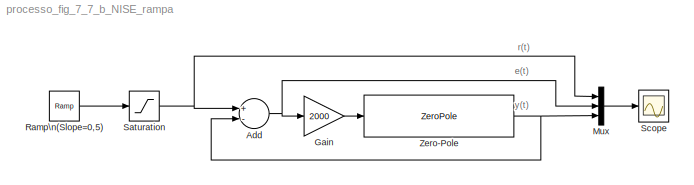
MODEL processo_fig_7_7_b_NISE_rampa
KIND model
BLOCK [Sum] Add
  InputSameDT = off
  Inputs = +-
  OutDataTypeStr = Inherit: Inherit via internal rule
  Ports = [2, 1]
  SID = 2
  SaturateOnIntegerOverflow = off
BLOCK [Gain] Gain
  Gain = 2000
  OutDataTypeStr = Inherit: Inherit via internal rule
  ParamDataTypeStr = Inherit: Inherit via internal rule
  SID = 4
  SaturateOnIntegerOverflow = off
BLOCK [Mux] Mux
  DisplayOption = bar
  Inputs = 3
  Ports = [3, 1]
  SID = 5
BLOCK [Reference] Ramp\n(Slope=0,5)  REF=simulink/Sources/Ramp
  Ports = [0, 1]
  SID = 13
  SourceBlock = simulink/Sources/Ramp
  SourceType = Ramp
  VectorParams1D = on
  X0 = 0
  slope = 0.5
  start = 1
BLOCK [Saturate] Saturation
  InputPortMap = u0
  LowerLimit = 0
  Ports = [1, 1]
  SID = 14
  UpperLimit = 2
BLOCK [Scope] Scope
  NumInputPorts = 1
  Ports = [1]
  SID = 6
  ScopeSpecificationString = Simulink.scopes.TimeScopeBlockCfg('CurrentConfiguration', extmgr.ConfigurationSet(extmgr.Configuration('Core','General UI',true,'FigureColor',[1 1 1]),extmgr.Configuration('Core','Source UI',true),extmgr.Configuration('Sources','WiredSimulink',true),extmgr.Configuration('Visuals','Time Domain',true,'SerializedDisplays',{struct('MinYLimReal','-0.25','MaxYLimReal','2.25','YLabelReal','','MinYLimMag'...<+1737ch>
BLOCK [ZeroPole] Zero-Pole
  Poles = [0 -8 -10 -12]
  SID = 12
  Zeros = [-2 -5 -6]
ANNOTATION (root): \n \n e(t)
ANNOTATION (root): \n \n r(t)
ANNOTATION (root): \n \n y(t)
NET Add:1 -> Gain:1, Mux:2
LINE Gain:1 -> Zero-Pole:1
LINE Mux:1 -> Scope:1
LINE Ramp\n(Slope=0,5):1 -> Saturation:1
NET Saturation:1 -> Add:1, Mux:1
NET Zero-Pole:1 -> Add:2, Mux:3
note: NET lines group one-source signal fan-out (src -> all destinations, sorted); 1:1 wires keep LINE
